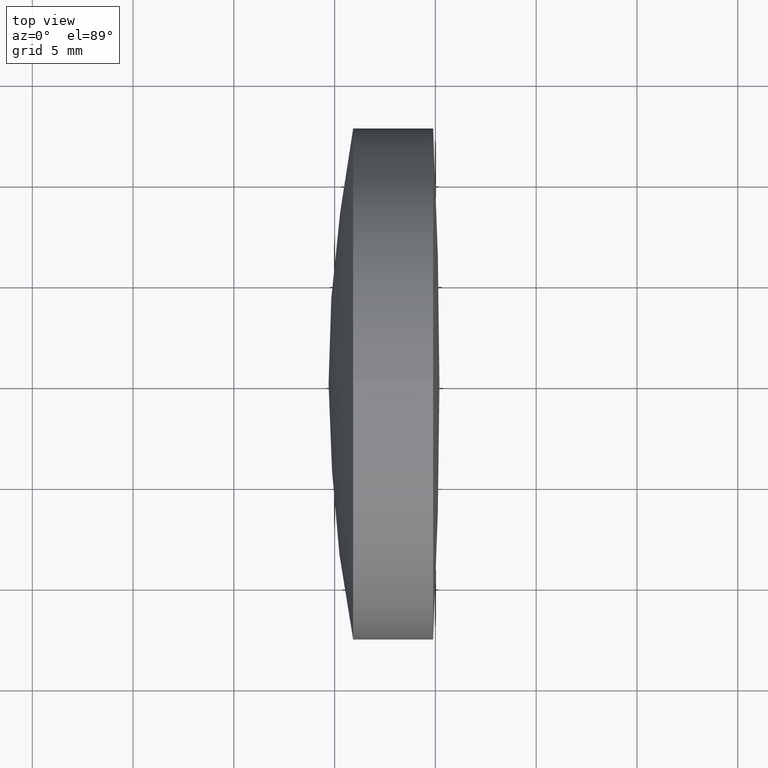
[diagram: clean part render]
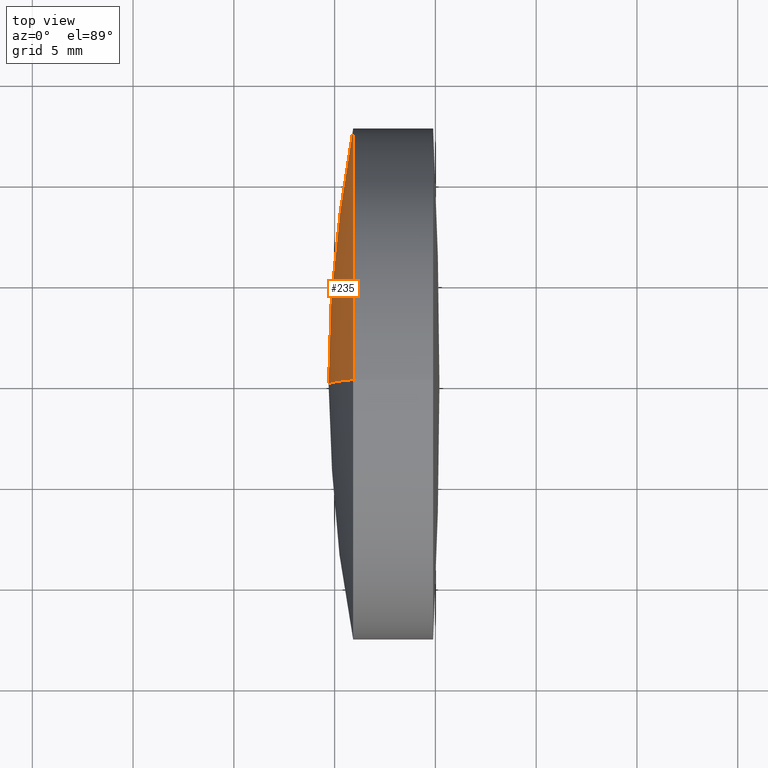
[diagram: same view with one face highlighted and labeled with its STEP entity id]
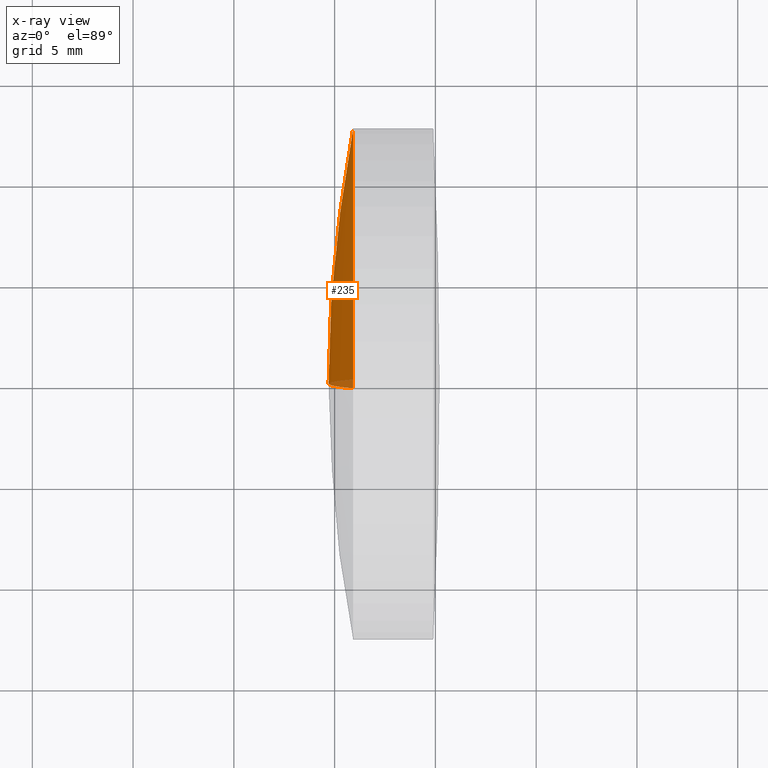
[diagram: x-ray of the same camera — body ghosted, the highlighted face saturated]
A machine part, top view. The second image highlights one B-rep face of the part: STEP entity #235.
The next image is the same camera in x-ray: the body ghosted, the highlighted face saturated — about 3% of this face is hidden behind the body in this view.
In plain terms, the highlighted spherical surface has radius 66.68 mm.
Its self-contained STEP definition (entity closure, byte-faithful):
#38 = CARTESIAN_POINT ( 'NONE',  ( 299.7001259381128200, 0.0000000000000000000, 2.776124129692395000E-015 ) ) ;
#40 = EDGE_CURVE ( 'NONE', #201, #286, #165, .T. ) ;
#49 = CARTESIAN_POINT ( 'NONE',  ( 366.3801259381128300, 0.0000000000000000000, 6.859096558049670400E-015 ) ) ;
#53 = EDGE_CURVE ( 'NONE', #264, #286, #265, .T. ) ;
#61 = ORIENTED_EDGE ( 'NONE', *, *, #53, .T. ) ;
#78 = DIRECTION ( 'NONE',  ( 0.0000000000000000000, 1.000000000000000000, -0.0000000000000000000 ) ) ;
#82 = DIRECTION ( 'NONE',  ( -1.000000000000000000, -0.0000000000000000000, -0.0000000000000000000 ) ) ;
#89 = AXIS2_PLACEMENT_3D ( 'NONE', #243, #82, #275 ) ;
#111 = ORIENTED_EDGE ( 'NONE', *, *, #40, .F. ) ;
#117 = EDGE_CURVE ( 'NONE', #201, #264, #293, .T. ) ;
#129 = CARTESIAN_POINT ( 'NONE',  ( 366.3801259381128300, 0.0000000000000000000, 6.859096558049670400E-015 ) ) ;
#136 = DIRECTION ( 'NONE',  ( 0.0000000000000000000, 1.224646799147353200E-016, -1.000000000000000000 ) ) ;
#143 = SPHERICAL_SURFACE ( 'NONE', #277, 66.67999999999999300 ) ;
#147 = AXIS2_PLACEMENT_3D ( 'NONE', #49, #78, #322 ) ;
#164 = AXIS2_PLACEMENT_3D ( 'NONE', #129, #300, #136 ) ;
#165 = CIRCLE ( 'NONE', #164, 66.67999999999999300 ) ;
#166 = CARTESIAN_POINT ( 'NONE',  ( 300.9207308904956900, -1.555301434917137800E-015, 12.69999999999999900 ) ) ;
#168 = DIRECTION ( 'NONE',  ( -0.0000000000000000000, -1.000000000000000000, -0.0000000000000000000 ) ) ;
#201 = VERTEX_POINT ( 'NONE', #166 ) ;
#218 = CARTESIAN_POINT ( 'NONE',  ( 366.3801259381128300, 0.0000000000000000000, 6.859096558049670400E-015 ) ) ;
#235 = ADVANCED_FACE ( 'NONE', ( #256 ), #143, .T. ) ;
#243 = CARTESIAN_POINT ( 'NONE',  ( 300.9207308904956900, 0.0000000000000000000, 0.0000000000000000000 ) ) ;
#247 = EDGE_LOOP ( 'NONE', ( #111, #254, #61 ) ) ;
#250 = DIRECTION ( 'NONE',  ( 0.0000000000000000000, 0.0000000000000000000, -1.000000000000000000 ) ) ;
#254 = ORIENTED_EDGE ( 'NONE', *, *, #117, .T. ) ;
#256 = FACE_OUTER_BOUND ( 'NONE', #247, .T. ) ;
#264 = VERTEX_POINT ( 'NONE', #282 ) ;
#265 = CIRCLE ( 'NONE', #147, 66.67999999999999300 ) ;
#275 = DIRECTION ( 'NONE',  ( 0.0000000000000000000, 0.0000000000000000000, 1.000000000000000000 ) ) ;
#277 = AXIS2_PLACEMENT_3D ( 'NONE', #218, #168, #250 ) ;
#282 = CARTESIAN_POINT ( 'NONE',  ( 300.9207308904956900, 0.0000000000000000000, -12.69999999999999200 ) ) ;
#286 = VERTEX_POINT ( 'NONE', #38 ) ;
#293 = CIRCLE ( 'NONE', #89, 12.70000000000000600 ) ;
#300 = DIRECTION ( 'NONE',  ( 0.0000000000000000000, -1.000000000000000000, -1.224646799147353200E-016 ) ) ;
#322 = DIRECTION ( 'NONE',  ( 0.0000000000000000000, 0.0000000000000000000, 1.000000000000000000 ) ) ;